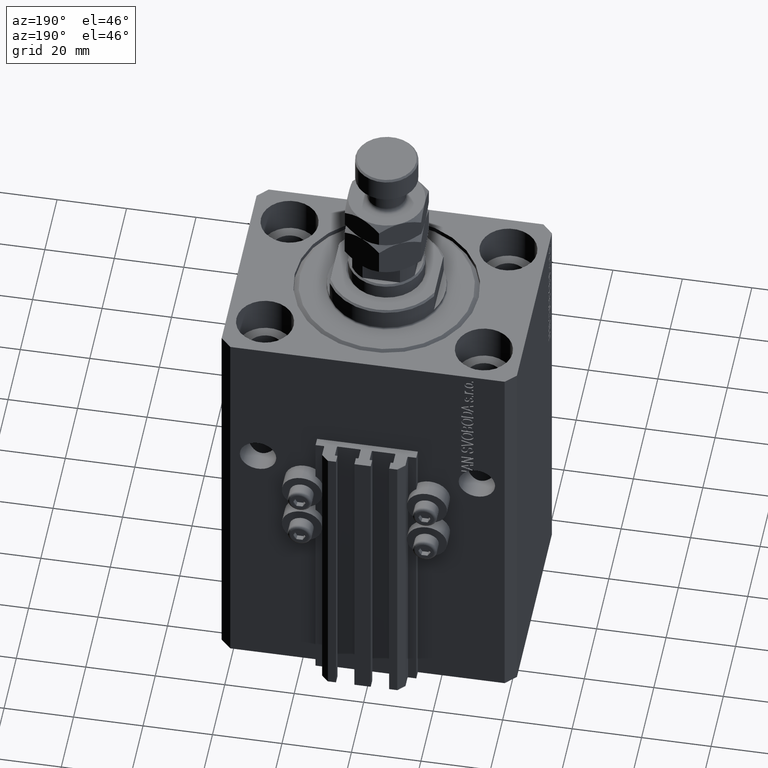
[diagram: clean part render]
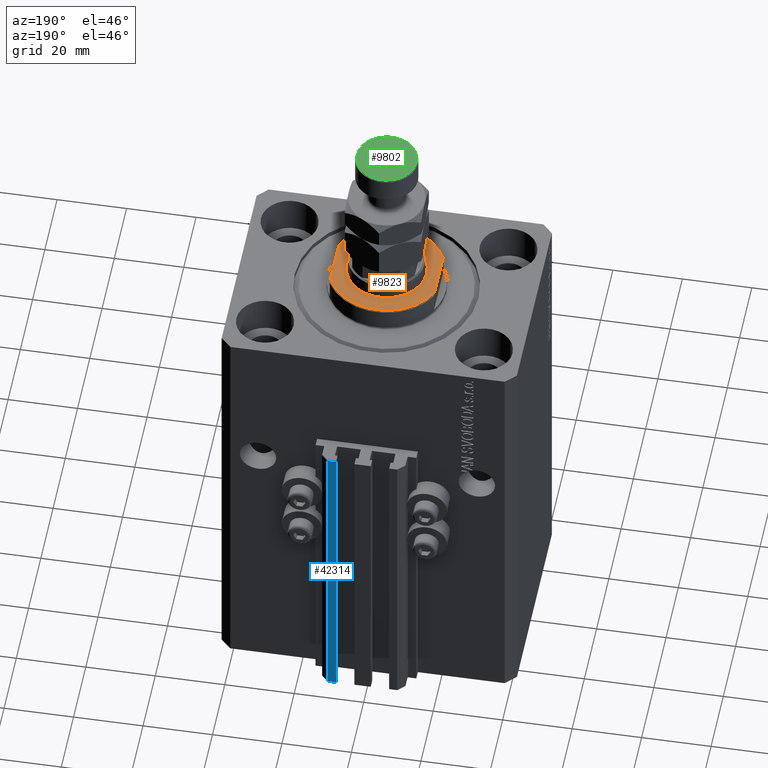
[diagram: same view with three faces highlighted in distinct colors, each labeled with its STEP entity id]
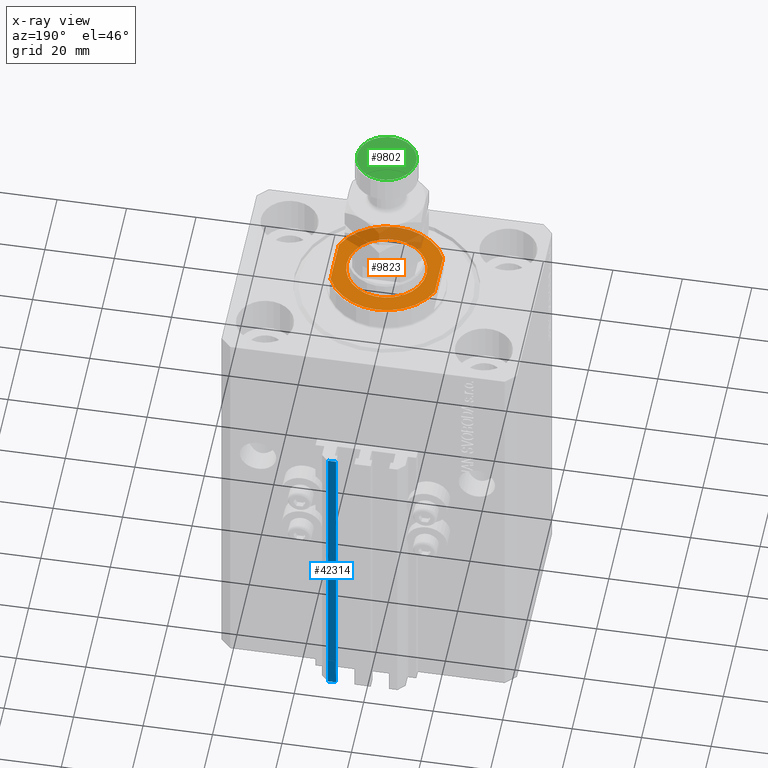
[diagram: x-ray of the same camera — body ghosted, the three highlighted faces saturated]
A machine part, auxiliary view with three faces highlighted in distinct colors.
The next image is the same camera in x-ray (body ghosted, the three faces saturated) — at least one of them is partly hidden behind the body in this view.
Their STEP definitions:

[orange] entity #9823 — the highlighted planar face has unit normal (0, 0, 1).
#1258 = VERTEX_POINT ( 'NONE', #47804 ) ;
#1403 = ORIENTED_EDGE ( 'NONE', *, *, #16682, .T. ) ;
#1645 = PLANE ( 'NONE',  #13226 ) ;
#2358 = VERTEX_POINT ( 'NONE', #40446 ) ;
#7018 = CIRCLE ( 'NONE', #33271, 16.50000000000000711 ) ;
#7393 = VERTEX_POINT ( 'NONE', #18042 ) ;
#9745 = EDGE_CURVE ( 'NONE', #2358, #28728, #34689, .T. ) ;
#9823 = ADVANCED_FACE ( 'NONE', ( #40242, #47231 ), #1645, .T. ) ;
#10451 = AXIS2_PLACEMENT_3D ( 'NONE', #16681, #28865, #25131 ) ;
#12482 = EDGE_LOOP ( 'NONE', ( #1403, #35603, #38517, #45712 ) ) ;
#13101 = DIRECTION ( 'NONE',  ( 0.000000000000000000, 0.000000000000000000, -1.000000000000000000 ) ) ;
#13226 = AXIS2_PLACEMENT_3D ( 'NONE', #43985, #13101, #43743 ) ;
#13828 = CARTESIAN_POINT ( 'NONE',  ( 0.000000000000000000, 0.000000000000000000, -7.000000000000000000 ) ) ;
#14421 = LINE ( 'NONE', #41060, #21294 ) ;
#16598 = DIRECTION ( 'NONE',  ( -0.000000000000000000, -0.000000000000000000, 1.000000000000000000 ) ) ;
#16681 = CARTESIAN_POINT ( 'NONE',  ( 0.000000000000000000, 0.000000000000000000, -7.000000000000000000 ) ) ;
#16682 = EDGE_CURVE ( 'NONE', #19190, #1258, #7018, .T. ) ;
#17347 = DIRECTION ( 'NONE',  ( -1.000000000000000000, 0.000000000000000000, 0.000000000000000000 ) ) ;
#17464 = CIRCLE ( 'NONE', #32551, 11.49999999999999645 ) ;
#17746 = LINE ( 'NONE', #32917, #31761 ) ;
#18042 = CARTESIAN_POINT ( 'NONE',  ( -15.00000000000000000, -6.873863542433783280, -7.000000000000000000 ) ) ;
#18646 = DIRECTION ( 'NONE',  ( -0.000000000000000000, -1.000000000000000000, -0.000000000000000000 ) ) ;
#19190 = VERTEX_POINT ( 'NONE', #44387 ) ;
#19803 = EDGE_CURVE ( 'NONE', #28728, #2358, #17464, .T. ) ;
#20070 = EDGE_CURVE ( 'NONE', #1258, #34166, #17746, .T. ) ;
#21294 = VECTOR ( 'NONE', #18646, 1000.000000000000000 ) ;
#23471 = DIRECTION ( 'NONE',  ( -1.000000000000000000, 0.000000000000000000, 0.000000000000000000 ) ) ;
#25131 = DIRECTION ( 'NONE',  ( -1.000000000000000000, 0.000000000000000000, 0.000000000000000000 ) ) ;
#26987 = EDGE_CURVE ( 'NONE', #34166, #7393, #43839, .T. ) ;
#28728 = VERTEX_POINT ( 'NONE', #41864 ) ;
#28865 = DIRECTION ( 'NONE',  ( 0.000000000000000000, 0.000000000000000000, -1.000000000000000000 ) ) ;
#31665 = CARTESIAN_POINT ( 'NONE',  ( 0.000000000000000000, 0.000000000000000000, -7.000000000000000000 ) ) ;
#31761 = VECTOR ( 'NONE', #40652, 1000.000000000000000 ) ;
#32551 = AXIS2_PLACEMENT_3D ( 'NONE', #13828, #34937, #34451 ) ;
#32917 = CARTESIAN_POINT ( 'NONE',  ( 15.00000000000000000, -42.42640687119285303, -7.000000000000000000 ) ) ;
#33271 = AXIS2_PLACEMENT_3D ( 'NONE', #31665, #39135, #23471 ) ;
#33805 = AXIS2_PLACEMENT_3D ( 'NONE', #39748, #16598, #17347 ) ;
#34166 = VERTEX_POINT ( 'NONE', #43877 ) ;
#34451 = DIRECTION ( 'NONE',  ( -1.000000000000000000, 0.000000000000000000, 0.000000000000000000 ) ) ;
#34689 = CIRCLE ( 'NONE', #33805, 11.49999999999999645 ) ;
#34937 = DIRECTION ( 'NONE',  ( -0.000000000000000000, -0.000000000000000000, 1.000000000000000000 ) ) ;
#35603 = ORIENTED_EDGE ( 'NONE', *, *, #20070, .T. ) ;
#38517 = ORIENTED_EDGE ( 'NONE', *, *, #26987, .T. ) ;
#39135 = DIRECTION ( 'NONE',  ( 0.000000000000000000, 0.000000000000000000, -1.000000000000000000 ) ) ;
#39748 = CARTESIAN_POINT ( 'NONE',  ( 0.000000000000000000, 0.000000000000000000, -7.000000000000000000 ) ) ;
#39855 = ORIENTED_EDGE ( 'NONE', *, *, #9745, .T. ) ;
#40242 = FACE_BOUND ( 'NONE', #47393, .T. ) ;
#40446 = CARTESIAN_POINT ( 'NONE',  ( 11.49999999999999645, 1.408343819019455781E-15, -7.000000000000000000 ) ) ;
#40652 = DIRECTION ( 'NONE',  ( 0.000000000000000000, -1.000000000000000000, -0.000000000000000000 ) ) ;
#41060 = CARTESIAN_POINT ( 'NONE',  ( -15.00000000000000000, -42.42640687119285303, -7.000000000000000000 ) ) ;
#41864 = CARTESIAN_POINT ( 'NONE',  ( -11.49999999999999645, 0.000000000000000000, -7.000000000000000000 ) ) ;
#43743 = DIRECTION ( 'NONE',  ( -1.000000000000000000, 0.000000000000000000, -0.000000000000000000 ) ) ;
#43839 = CIRCLE ( 'NONE', #10451, 16.50000000000000711 ) ;
#43877 = CARTESIAN_POINT ( 'NONE',  ( 14.99999999999999645, -6.873863542433781504, -7.000000000000000000 ) ) ;
#43985 = CARTESIAN_POINT ( 'NONE',  ( 0.000000000000000000, 0.000000000000000000, -7.000000000000000000 ) ) ;
#44387 = CARTESIAN_POINT ( 'NONE',  ( -14.99999999999999645, 6.873863542433781504, -7.000000000000000000 ) ) ;
#45175 = EDGE_CURVE ( 'NONE', #19190, #7393, #14421, .T. ) ;
#45712 = ORIENTED_EDGE ( 'NONE', *, *, #45175, .F. ) ;
#47231 = FACE_OUTER_BOUND ( 'NONE', #12482, .T. ) ;
#47393 = EDGE_LOOP ( 'NONE', ( #48973, #39855 ) ) ;
#47804 = CARTESIAN_POINT ( 'NONE',  ( 14.99999999999999645, 6.873863542433781504, -7.000000000000000000 ) ) ;
#48973 = ORIENTED_EDGE ( 'NONE', *, *, #19803, .T. ) ;

[blue] entity #42314 — the highlighted planar face has unit normal (0, 1, 0).
#1158 = CARTESIAN_POINT ( 'NONE',  ( 9.999999999999998224, 39.50000000000002132, -123.0000000000000000 ) ) ;
#1214 = CARTESIAN_POINT ( 'NONE',  ( 7.649999999999998579, 39.50000000000002132, -123.0000000000000000 ) ) ;
#2124 = DIRECTION ( 'NONE',  ( -1.000000000000000000, 0.000000000000000000, 0.000000000000000000 ) ) ;
#2606 = LINE ( 'NONE', #13339, #12398 ) ;
#3378 = CARTESIAN_POINT ( 'NONE',  ( 7.649999999999998579, 39.50000000000002132, -33.00000000000000000 ) ) ;
#3822 = VERTEX_POINT ( 'NONE', #9657 ) ;
#5276 = AXIS2_PLACEMENT_3D ( 'NONE', #37048, #33559, #26092 ) ;
#6808 = CARTESIAN_POINT ( 'NONE',  ( 9.999999999999998224, 39.50000000000002132, -123.0000000000000000 ) ) ;
#6905 = VERTEX_POINT ( 'NONE', #1158 ) ;
#9657 = CARTESIAN_POINT ( 'NONE',  ( 9.999999999999998224, 39.50000000000002132, -33.00000000000000000 ) ) ;
#10272 = DIRECTION ( 'NONE',  ( 0.000000000000000000, 0.000000000000000000, 1.000000000000000000 ) ) ;
#11910 = VERTEX_POINT ( 'NONE', #3378 ) ;
#12398 = VECTOR ( 'NONE', #2124, 1000.000000000000000 ) ;
#13339 = CARTESIAN_POINT ( 'NONE',  ( 9.999999999999998224, 39.50000000000002132, -123.0000000000000000 ) ) ;
#14525 = DIRECTION ( 'NONE',  ( 0.000000000000000000, 0.000000000000000000, 1.000000000000000000 ) ) ;
#21161 = VECTOR ( 'NONE', #10272, 1000.000000000000000 ) ;
#21861 = PLANE ( 'NONE',  #5276 ) ;
#24137 = EDGE_LOOP ( 'NONE', ( #44734, #24799, #24663, #29068 ) ) ;
#24663 = ORIENTED_EDGE ( 'NONE', *, *, #41637, .T. ) ;
#24799 = ORIENTED_EDGE ( 'NONE', *, *, #25641, .F. ) ;
#25641 = EDGE_CURVE ( 'NONE', #6905, #3822, #25723, .T. ) ;
#25723 = LINE ( 'NONE', #6808, #31827 ) ;
#26009 = VERTEX_POINT ( 'NONE', #1214 ) ;
#26092 = DIRECTION ( 'NONE',  ( 0.000000000000000000, 0.000000000000000000, 1.000000000000000000 ) ) ;
#28548 = LINE ( 'NONE', #29708, #32330 ) ;
#29068 = ORIENTED_EDGE ( 'NONE', *, *, #37353, .T. ) ;
#29708 = CARTESIAN_POINT ( 'NONE',  ( 9.999999999999998224, 39.50000000000002132, -33.00000000000000000 ) ) ;
#31827 = VECTOR ( 'NONE', #14525, 1000.000000000000000 ) ;
#32330 = VECTOR ( 'NONE', #47486, 1000.000000000000000 ) ;
#33559 = DIRECTION ( 'NONE',  ( 0.000000000000000000, 1.000000000000000000, -0.000000000000000000 ) ) ;
#37048 = CARTESIAN_POINT ( 'NONE',  ( 9.999999999999998224, 39.50000000000002132, -123.0000000000000000 ) ) ;
#37353 = EDGE_CURVE ( 'NONE', #26009, #11910, #48125, .T. ) ;
#40787 = FACE_OUTER_BOUND ( 'NONE', #24137, .T. ) ;
#41637 = EDGE_CURVE ( 'NONE', #6905, #26009, #2606, .T. ) ;
#42314 = ADVANCED_FACE ( 'NONE', ( #40787 ), #21861, .T. ) ;
#42470 = EDGE_CURVE ( 'NONE', #3822, #11910, #28548, .T. ) ;
#44392 = CARTESIAN_POINT ( 'NONE',  ( 7.649999999999998579, 39.50000000000002132, -123.0000000000000000 ) ) ;
#44734 = ORIENTED_EDGE ( 'NONE', *, *, #42470, .F. ) ;
#47486 = DIRECTION ( 'NONE',  ( -1.000000000000000000, 0.000000000000000000, 0.000000000000000000 ) ) ;
#48125 = LINE ( 'NONE', #44392, #21161 ) ;

[green] entity #9802 — the highlighted planar face has unit normal (0, 0, 1).
#1885 = VERTEX_POINT ( 'NONE', #14304 ) ;
#1974 = CIRCLE ( 'NONE', #27422, 8.499999999999992895 ) ;
#5139 = AXIS2_PLACEMENT_3D ( 'NONE', #5872, #17092, #36006 ) ;
#5872 = CARTESIAN_POINT ( 'NONE',  ( 0.000000000000000000, 0.000000000000000000, 35.00000000000000000 ) ) ;
#6122 = PLANE ( 'NONE',  #5139 ) ;
#9802 = ADVANCED_FACE ( 'NONE', ( #20831 ), #6122, .T. ) ;
#10133 = CIRCLE ( 'NONE', #20466, 8.499999999999992895 ) ;
#14304 = CARTESIAN_POINT ( 'NONE',  ( -8.499999999999992895, 0.000000000000000000, 35.00000000000000000 ) ) ;
#14700 = CARTESIAN_POINT ( 'NONE',  ( 8.499999999999992895, 1.071565949253933532E-15, 35.00000000000000000 ) ) ;
#17092 = DIRECTION ( 'NONE',  ( 0.000000000000000000, 0.000000000000000000, 1.000000000000000000 ) ) ;
#17544 = DIRECTION ( 'NONE',  ( 0.000000000000000000, 0.000000000000000000, 1.000000000000000000 ) ) ;
#17777 = DIRECTION ( 'NONE',  ( 1.000000000000000000, 0.000000000000000000, 0.000000000000000000 ) ) ;
#18622 = CARTESIAN_POINT ( 'NONE',  ( 0.000000000000000000, 0.000000000000000000, 35.00000000000000000 ) ) ;
#20466 = AXIS2_PLACEMENT_3D ( 'NONE', #43194, #17544, #17777 ) ;
#20751 = EDGE_LOOP ( 'NONE', ( #29560, #24360 ) ) ;
#20831 = FACE_OUTER_BOUND ( 'NONE', #20751, .T. ) ;
#24360 = ORIENTED_EDGE ( 'NONE', *, *, #38895, .T. ) ;
#27422 = AXIS2_PLACEMENT_3D ( 'NONE', #18622, #48020, #49015 ) ;
#29560 = ORIENTED_EDGE ( 'NONE', *, *, #43724, .T. ) ;
#36006 = DIRECTION ( 'NONE',  ( 1.000000000000000000, 0.000000000000000000, -0.000000000000000000 ) ) ;
#38527 = VERTEX_POINT ( 'NONE', #14700 ) ;
#38895 = EDGE_CURVE ( 'NONE', #38527, #1885, #1974, .T. ) ;
#43194 = CARTESIAN_POINT ( 'NONE',  ( 0.000000000000000000, 0.000000000000000000, 35.00000000000000000 ) ) ;
#43724 = EDGE_CURVE ( 'NONE', #1885, #38527, #10133, .T. ) ;
#48020 = DIRECTION ( 'NONE',  ( 0.000000000000000000, 0.000000000000000000, 1.000000000000000000 ) ) ;
#49015 = DIRECTION ( 'NONE',  ( 1.000000000000000000, 0.000000000000000000, 0.000000000000000000 ) ) ;